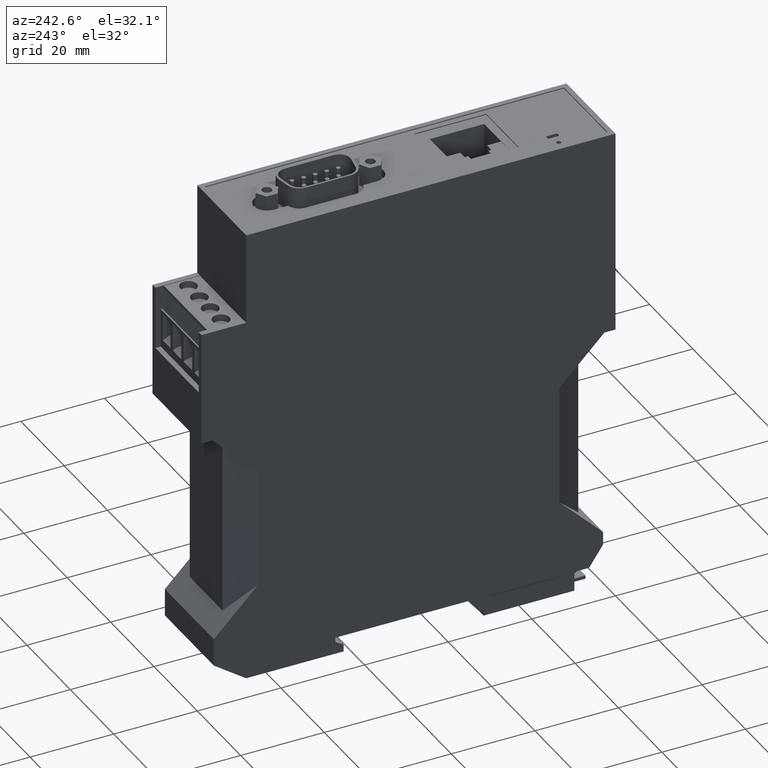
[diagram: clean part render]
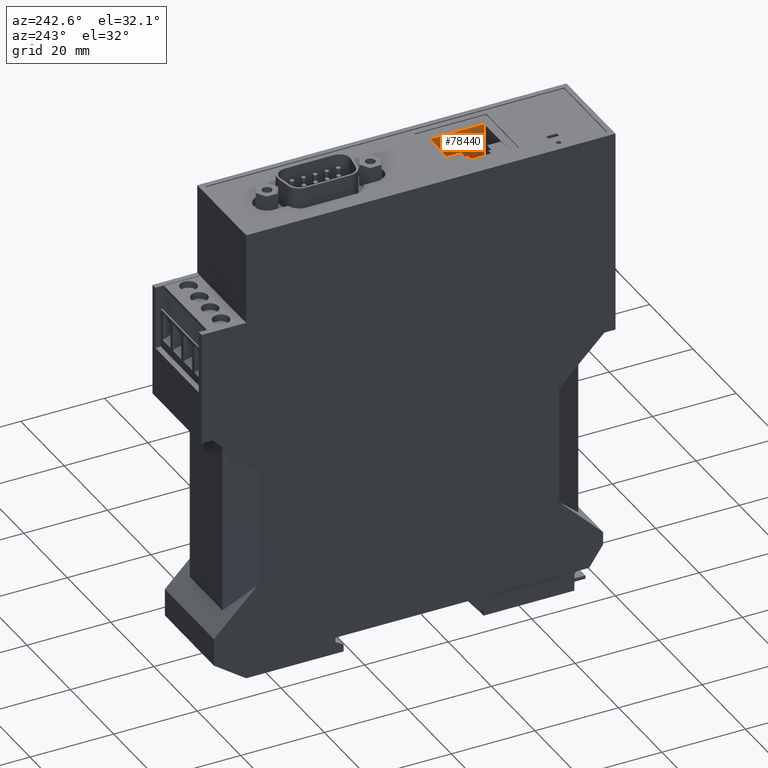
[diagram: same view with one face highlighted and labeled with its STEP entity id]
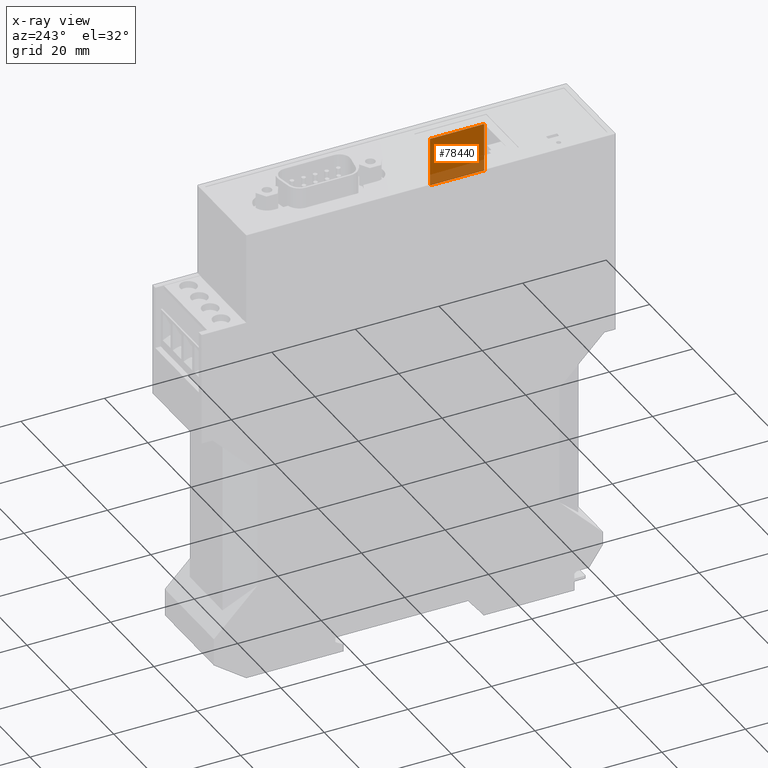
[diagram: x-ray of the same camera — body ghosted, the highlighted face saturated]
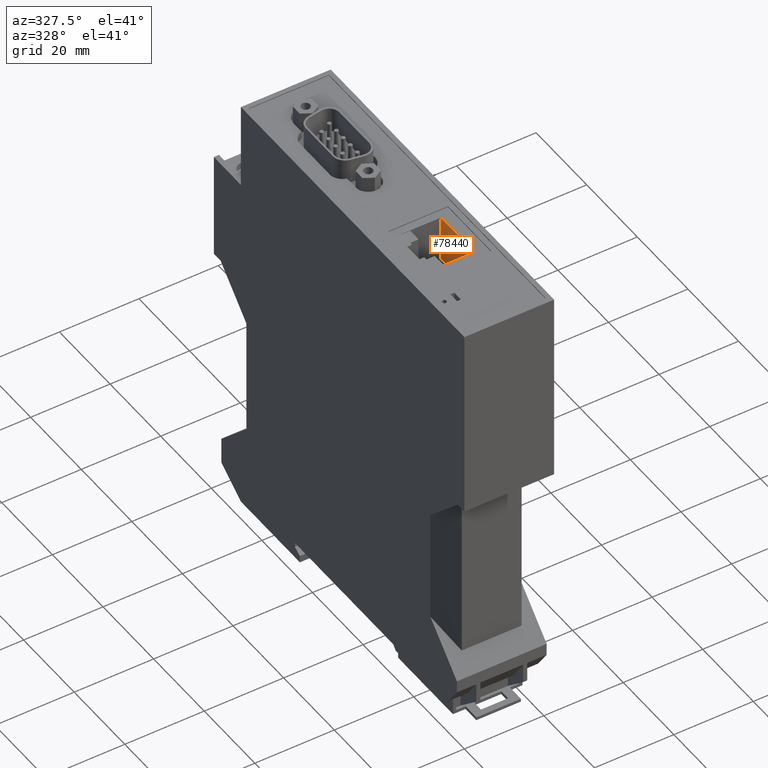
[diagram: same view with one face highlighted and labeled with its STEP entity id]
A machine part, auxiliary view. The second image highlights one B-rep face of the part: STEP entity #78440.
The next image is the same camera in x-ray: the body ghosted, the highlighted face saturated — about 23% of this face is hidden behind the body in this view.
A second angle (auxiliary view) of the same face is appended — the face is thin or edge-on in the first view.
In plain terms, the highlighted planar face has unit normal (-1, -0, -0).
Its self-contained STEP definition (entity closure, byte-faithful):
#67610=CARTESIAN_POINT('',(-44.3354000000172,106.600000000011,
16.8033996458559));
#67620=VERTEX_POINT('',#67610);
#67650=CARTESIAN_POINT('',(24.,106.59999999996,16.8033996458549));
#67660=DIRECTION('',(1.,-7.38964445188328E-13,-1.52810122827484E-14));
#67670=VECTOR('',#67660,1.);
#67680=LINE('',#67650,#67670);
#67690=CARTESIAN_POINT('',(-31.2954000000171,106.600000000001,
16.8033996458557));
#67700=VERTEX_POINT('',#67690);
#67710=EDGE_CURVE('',#67620,#67700,#67680,.T.);
#75930=CARTESIAN_POINT('',(-31.2954000000258,94.9427999999021,
16.8033996458557));
#75940=VERTEX_POINT('',#75930);
#75970=CARTESIAN_POINT('',(24.,94.9427999999031,16.8033996458549));
#75980=DIRECTION('',(1.,1.88186390340675E-14,-1.52810122827484E-14));
#75990=VECTOR('',#75980,1.);
#76000=LINE('',#75970,#75990);
#76010=CARTESIAN_POINT('',(-44.3354000000258,94.9427999999019,
16.8033996458559));
#76020=VERTEX_POINT('',#76010);
#76030=EDGE_CURVE('',#76020,#75940,#76000,.T.);
#78110=CARTESIAN_POINT('',(-44.3354000000782,24.,16.8033996458559));
#78120=DIRECTION('',(-7.38964445188328E-13,-1.,8.76355045940885E-25));
#78130=VECTOR('',#78120,1.);
#78140=LINE('',#78110,#78130);
#78150=EDGE_CURVE('',#67620,#76020,#78140,.T.);
#78280=CARTESIAN_POINT('',(-31.2954000000172,106.600000000001,
16.8033996458557));
#78290=DIRECTION('',(-1.52810122827484E-14,-8.65037891834471E-25,-1.));
#78300=DIRECTION('',(1.,-7.38964445188328E-13,-1.52810122827484E-14));
#78310=AXIS2_PLACEMENT_3D('',#78280,#78290,#78300);
#78320=PLANE('',#78310);
#78330=ORIENTED_EDGE('',*,*,#78150,.F.);
#78340=ORIENTED_EDGE('',*,*,#76030,.F.);
#78350=CARTESIAN_POINT('',(-31.2954000000782,24.,16.8033996458557));
#78360=DIRECTION('',(-7.38964445188328E-13,-1.,8.76355045940885E-25));
#78370=VECTOR('',#78360,1.);
#78380=LINE('',#78350,#78370);
#78390=EDGE_CURVE('',#67700,#75940,#78380,.T.);
#78400=ORIENTED_EDGE('',*,*,#78390,.T.);
#78410=ORIENTED_EDGE('',*,*,#67710,.T.);
#78420=EDGE_LOOP('',(#78410,#78400,#78340,#78330));
#78430=FACE_OUTER_BOUND('',#78420,.T.);
#78440=ADVANCED_FACE('',(#78430),#78320,.T.);